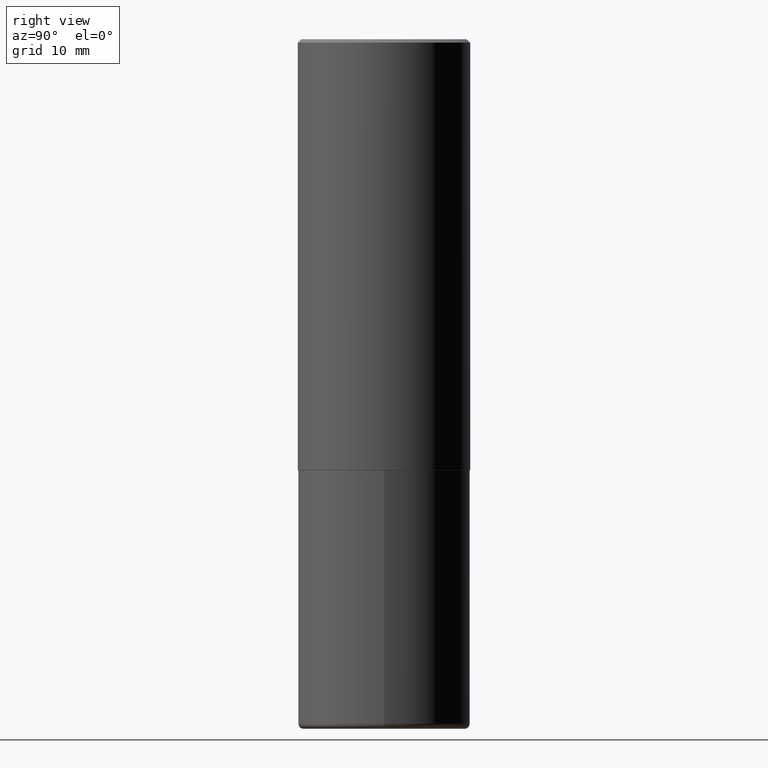
[diagram: clean part render]
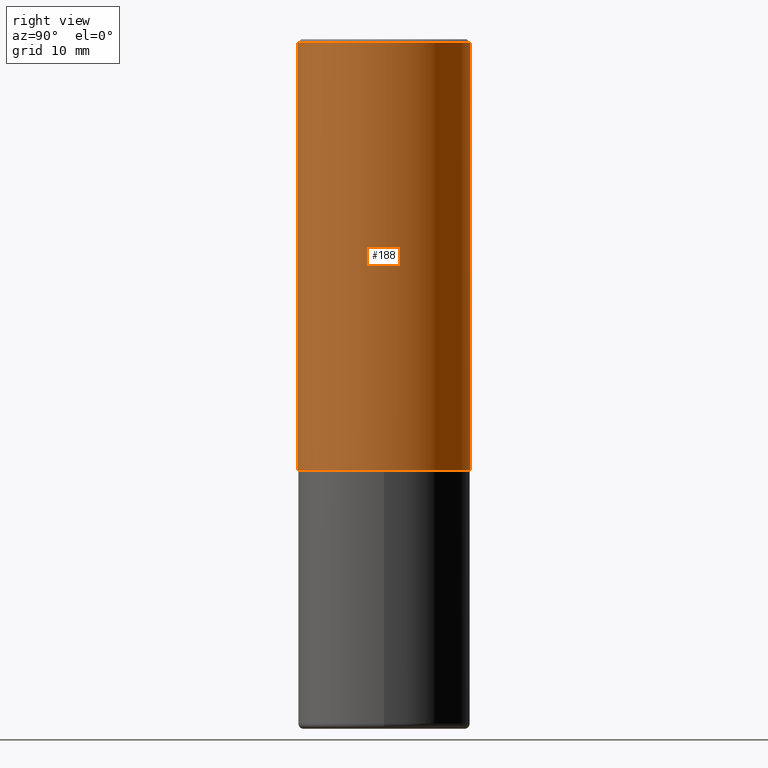
[diagram: same view with one face highlighted and labeled with its STEP entity id]
A machine part, right view. The second image highlights one B-rep face of the part: STEP entity #188.
In plain terms, the highlighted cylindrical surface (partial cylindrical patch) has radius 12.7 mm, axis along (-0, 0, 1).
Its self-contained STEP definition (entity closure, byte-faithful):
#5 = ORIENTED_EDGE ( 'NONE', *, *, #291, .T. ) ;
#6 = DIRECTION ( 'NONE',  ( -2.444946167972934928E-29, 3.492229786509738161E-15, 1.000000000000000000 ) ) ;
#7 = EDGE_CURVE ( 'NONE', #353, #360, #135, .T. ) ;
#11 = DIRECTION ( 'NONE',  ( -2.444946167972934928E-29, 3.492229786509738161E-15, 1.000000000000000000 ) ) ;
#33 = VECTOR ( 'NONE', #210, 39.37007874015748143 ) ;
#35 = VERTEX_POINT ( 'NONE', #302 ) ;
#36 = ORIENTED_EDGE ( 'NONE', *, *, #303, .T. ) ;
#54 = ORIENTED_EDGE ( 'NONE', *, *, #252, .F. ) ;
#76 = CARTESIAN_POINT ( 'NONE',  ( -3.430248998885764992E-15, -0.5000000000000001110, -0.01999999999999835937 ) ) ;
#86 = CARTESIAN_POINT ( 'NONE',  ( -3.491481338843073796E-15, -0.5000000000000089928, -2.498999999999998778 ) ) ;
#101 = VECTOR ( 'NONE', #408, 39.37007874015748143 ) ;
#103 = DIRECTION ( 'NONE',  ( -6.982962677686265922E-15, -1.000000000000000000, 3.491643216902136408E-15 ) ) ;
#104 = FACE_OUTER_BOUND ( 'NONE', #130, .T. ) ;
#114 = CARTESIAN_POINT ( 'NONE',  ( 6.109920473764365540E-29, -8.727082236487837614E-15, -2.499000000000000110 ) ) ;
#127 = CIRCLE ( 'NONE', #323, 0.5000000000000002220 ) ;
#130 = EDGE_LOOP ( 'NONE', ( #36, #5, #190, #54 ) ) ;
#135 = CIRCLE ( 'NONE', #151, 0.5000000000000000000 ) ;
#147 = LINE ( 'NONE', #406, #101 ) ;
#151 = AXIS2_PLACEMENT_3D ( 'NONE', #194, #6, #103 ) ;
#183 = LINE ( 'NONE', #409, #33 ) ;
#188 = ADVANCED_FACE ( 'NONE', ( #104 ), #333, .T. ) ;
#190 = ORIENTED_EDGE ( 'NONE', *, *, #7, .F. ) ;
#194 = CARTESIAN_POINT ( 'NONE',  ( 4.889892335945895815E-31, -6.984459573019513448E-17, -0.02000000000000010797 ) ) ;
#210 = DIRECTION ( 'NONE',  ( -2.444946167972934928E-29, 3.492229786509738161E-15, 1.000000000000000000 ) ) ;
#232 = CARTESIAN_POINT ( 'NONE',  ( 0.000000000000000000, 0.000000000000000000, 0.000000000000000000 ) ) ;
#252 = EDGE_CURVE ( 'NONE', #256, #353, #183, .T. ) ;
#256 = VERTEX_POINT ( 'NONE', #86 ) ;
#291 = EDGE_CURVE ( 'NONE', #35, #360, #147, .T. ) ;
#302 = CARTESIAN_POINT ( 'NONE',  ( 3.552713678800533273E-15, 0.4999999999999916178, -2.499000000000001886 ) ) ;
#303 = EDGE_CURVE ( 'NONE', #256, #35, #127, .T. ) ;
#323 = AXIS2_PLACEMENT_3D ( 'NONE', #114, #11, #340 ) ;
#333 = CYLINDRICAL_SURFACE ( 'NONE', #411, 0.5000000000000001110 ) ;
#337 = DIRECTION ( 'NONE',  ( -2.444946167972934928E-29, 3.492229786509738161E-15, 1.000000000000000000 ) ) ;
#340 = DIRECTION ( 'NONE',  ( -6.982962677686266711E-15, -1.000000000000000000, 3.278217592397114284E-15 ) ) ;
#353 = VERTEX_POINT ( 'NONE', #76 ) ;
#360 = VERTEX_POINT ( 'NONE', #371 ) ;
#362 = DIRECTION ( 'NONE',  ( -6.982962677686265922E-15, -1.000000000000000000, 3.492229786509738161E-15 ) ) ;
#371 = CARTESIAN_POINT ( 'NONE',  ( 3.491481338843133355E-15, 0.4999999999999999445, -0.02000000000000185310 ) ) ;
#406 = CARTESIAN_POINT ( 'NONE',  ( 3.552713678800501718E-15, 0.5000000000000001110, -1.746114893254869475E-15 ) ) ;
#408 = DIRECTION ( 'NONE',  ( -2.444946167972934928E-29, 3.492229786509738161E-15, 1.000000000000000000 ) ) ;
#409 = CARTESIAN_POINT ( 'NONE',  ( -3.491481338843133750E-15, -0.5000000000000001110, 1.746114893254869475E-15 ) ) ;
#411 = AXIS2_PLACEMENT_3D ( 'NONE', #232, #337, #362 ) ;